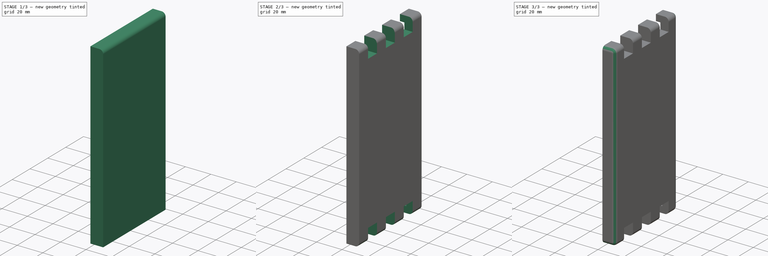
[diagram: build sequence overview — one tinted view per stage of 3, left to right]
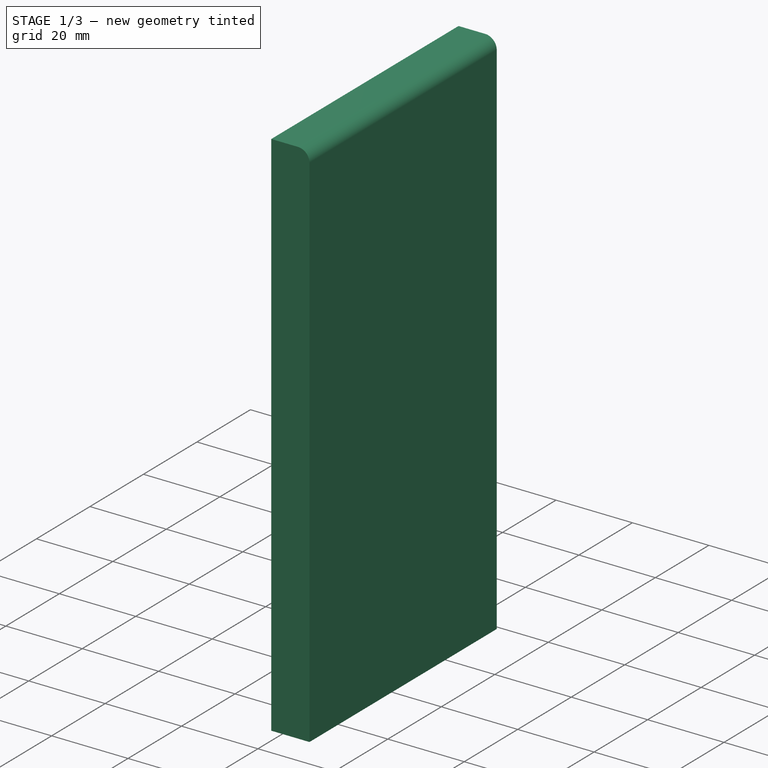
[diagram: stage 1 of 3 — iso view after this stage's code; geometry added in this stage tinted green]
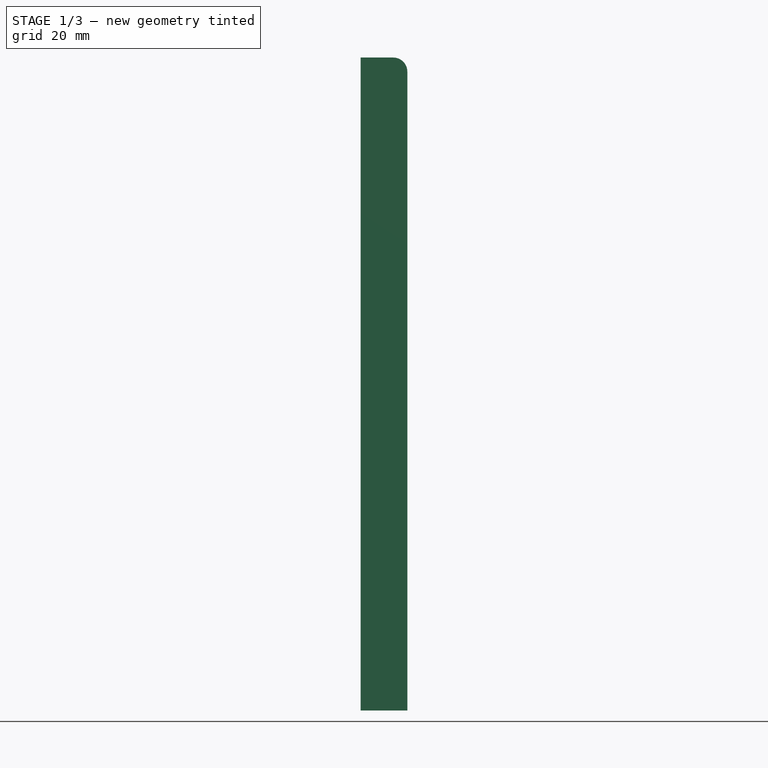
[diagram: stage 1 of 3 — front view after this stage's code; geometry added in this stage tinted green]
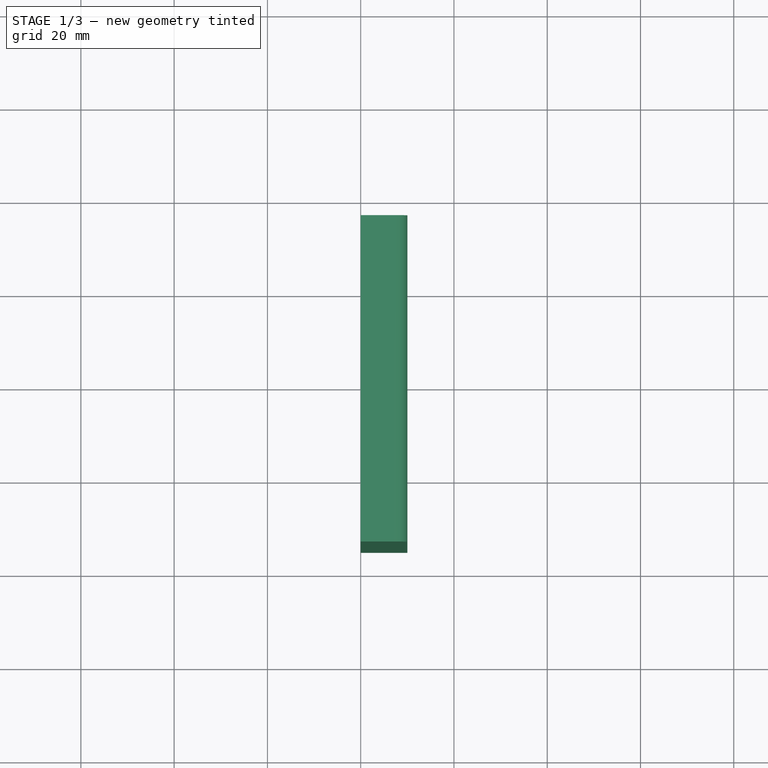
[diagram: stage 1 of 3 — top view after this stage's code; geometry added in this stage tinted green]
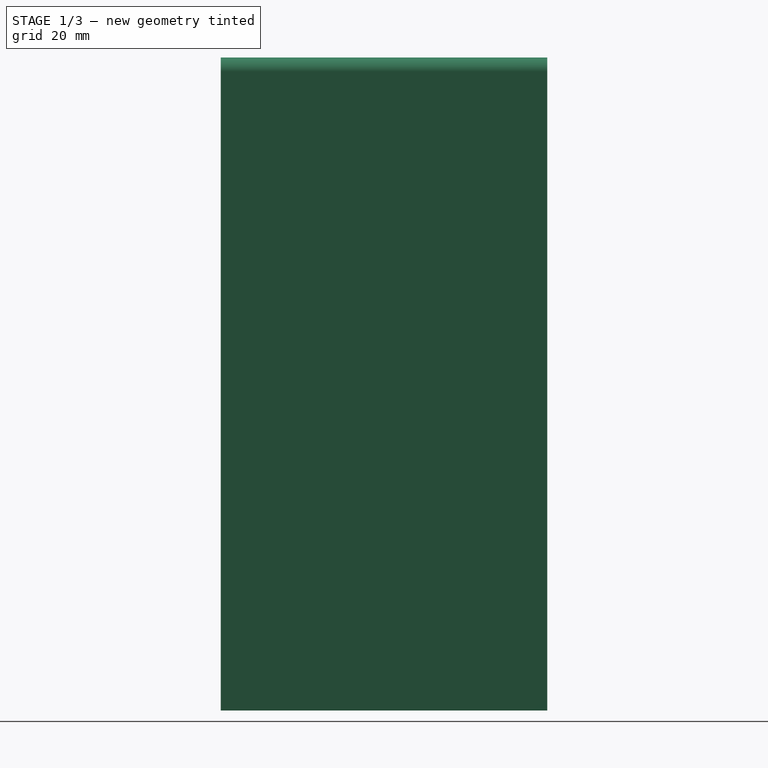
[diagram: stage 1 of 3 — right view after this stage's code; geometry added in this stage tinted green]
FCSTD DOCUMENT  (FreeCAD 0.18R16093 (Git))
Label: sidePanelLeft
License: All rights reserved
LicenseURL: http://en.wikipedia.org/wiki/All_rights_reserved
objects: PartDesign::Fillet×4, Drawing::FeatureViewPart×4, Sketcher::SketchObject×3, PartDesign::Pocket×2, PartDesign::Pad×1, PartDesign::Body×1, Drawing::FeaturePage×1
note: 14 computed .brp shape members not serialized (recipe doc carries the construction recipe); baked Part::Feature solids carry a one-line shape summary decoded from their .brp

FEATURE [Sketcher::SketchObject] Sketch
  MapMode = 5
  Placement = pos=(0,0,0) rot=(0.57735,0.57735,0.57735;2.0944rad)
  Support = -> [YZ_Plane]
  sketch-geometry (4):
    g0: LineSegment StartX=-35 StartY=70 StartZ=0 EndX=35 EndY=70 EndZ=0
    g1: LineSegment StartX=35 StartY=70 StartZ=0 EndX=35 EndY=-70 EndZ=0
    g2: LineSegment StartX=35 StartY=-70 StartZ=0 EndX=-35 EndY=-70 EndZ=0
    g3: LineSegment StartX=-35 StartY=-70 StartZ=0 EndX=-35 EndY=70 EndZ=0
  constraints (10):
    c: Coincident(g0,g1)
    c: Coincident(g1,g2)
    c: Coincident(g2,g3)
    c: Coincident(g3,g0)
    c: DistanceY(g3,g3) = 140
    c: DistanceX(g0,g0) = 70
    c: Symmetric(g0,g0,g-2)
    c: Symmetric(g0,g2,g-1)
    c: Parallel(g3,g1)
    c: Parallel(g0,g2)
FEATURE [PartDesign::Pad] Pad
  Length = 10
  Length2 = 100
  Placement = pos=(0,0,0) rot=(0.57735,0.57735,0.57735;2.0944rad)
  Profile = -> Sketch
  Type = 0
FEATURE [PartDesign::Fillet] Fillet
  Base = -> Pad [Edge4]
  BaseFeature = -> Pad
  Placement = pos=(0,0,0) rot=(0.57735,0.57735,0.57735;2.0944rad)
  Radius = 3
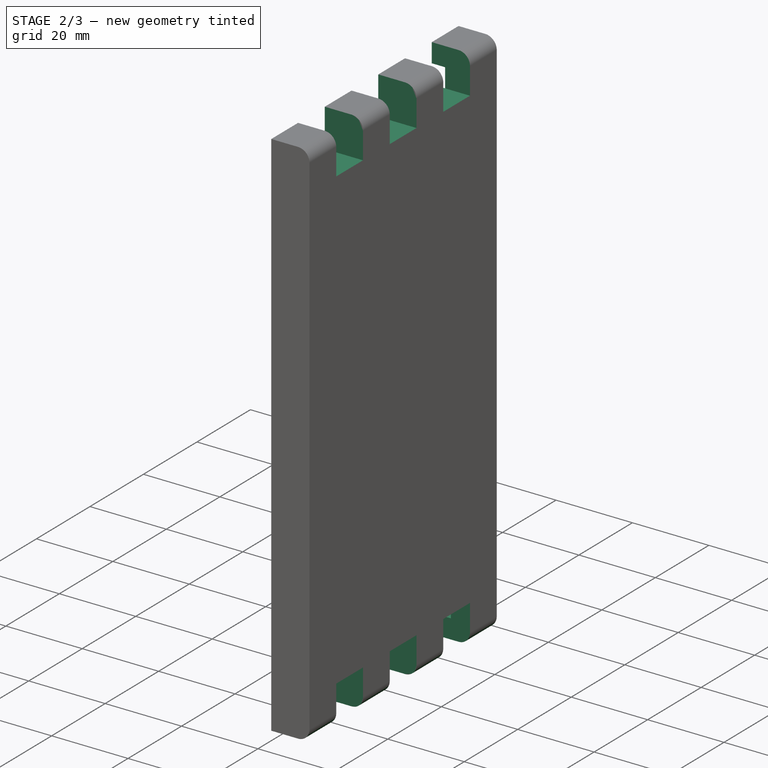
[diagram: stage 2 of 3 — iso view after this stage's code; geometry added in this stage tinted green]
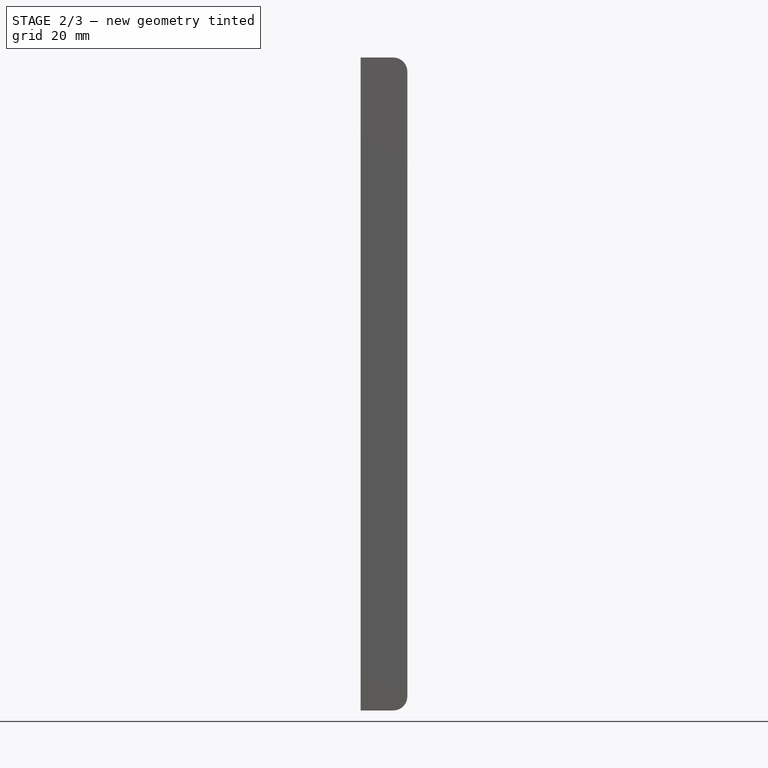
[diagram: stage 2 of 3 — front view after this stage's code; geometry added in this stage tinted green]
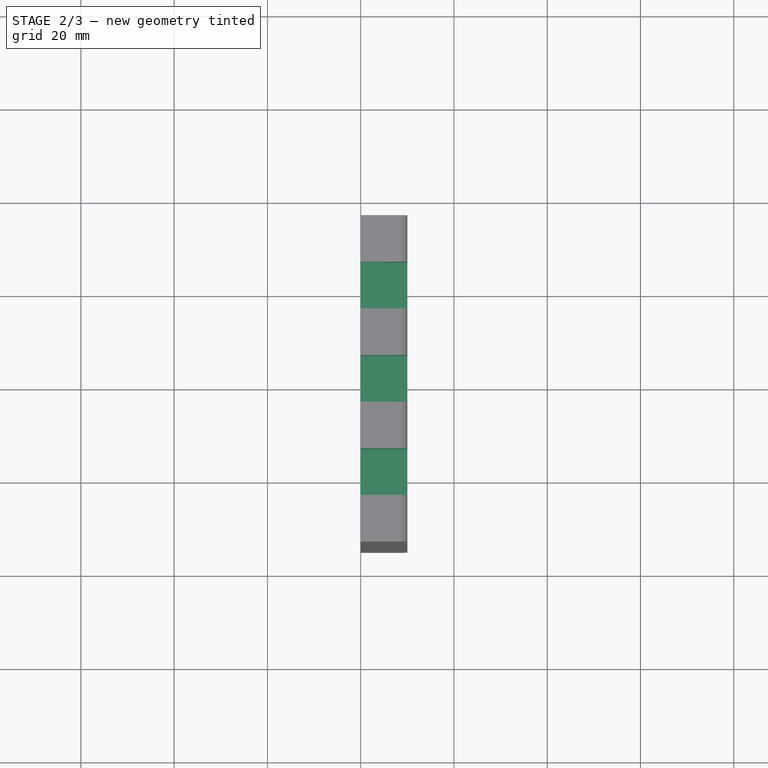
[diagram: stage 2 of 3 — top view after this stage's code; geometry added in this stage tinted green]
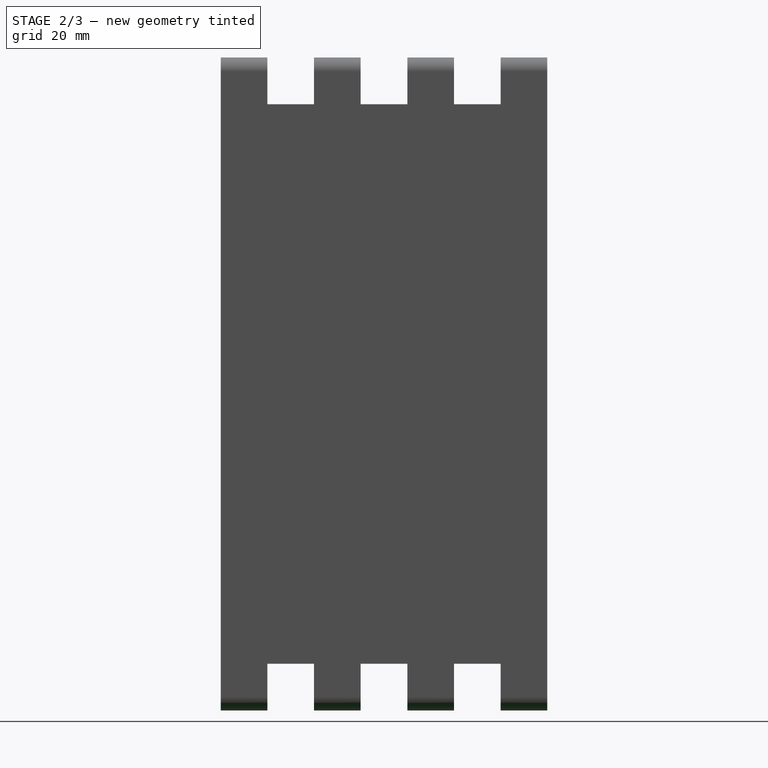
[diagram: stage 2 of 3 — right view after this stage's code; geometry added in this stage tinted green]
FEATURE [PartDesign::Fillet] Fillet001
  Base = -> Fillet [Edge15]
  BaseFeature = -> Fillet
  Placement = pos=(0,0,0) rot=(0.57735,0.57735,0.57735;2.0944rad)
  Radius = 3
FEATURE [Sketcher::SketchObject] Sketch001
  MapMode = 5
  Placement = pos=(0,0,0) rot=(0.57735,0.57735,-0.57735;4.18879rad)
  Support = -> [Fillet001]
  sketch-geometry (24):
    g0: LineSegment StartX=-25 StartY=70 StartZ=0 EndX=-15 EndY=70 EndZ=0
    g1: LineSegment StartX=-15 StartY=70 StartZ=0 EndX=-15 EndY=60 EndZ=0
    g2: LineSegment StartX=-15 StartY=60 StartZ=0 EndX=-25 EndY=60 EndZ=0
    g3: LineSegment StartX=-25 StartY=60 StartZ=0 EndX=-25 EndY=70 EndZ=0
    g4: LineSegment StartX=-5 StartY=70 StartZ=0 EndX=5 EndY=70 EndZ=0
    g5: LineSegment StartX=5 StartY=70 StartZ=0 EndX=5 EndY=60 EndZ=0
    g6: LineSegment StartX=5 StartY=60 StartZ=0 EndX=-5 EndY=60 EndZ=0
    g7: LineSegment StartX=-5 StartY=60 StartZ=0 EndX=-5 EndY=70 EndZ=0
    g8: LineSegment StartX=25 StartY=70 StartZ=0 EndX=15 EndY=70 EndZ=0
    g9: LineSegment StartX=15 StartY=70 StartZ=0 EndX=15 EndY=60 EndZ=0
    g10: LineSegment StartX=15 StartY=60 StartZ=0 EndX=25 EndY=60 EndZ=0
    g11: LineSegment StartX=25 StartY=60 StartZ=0 EndX=25 EndY=70 EndZ=0
    g12: LineSegment StartX=-25 StartY=-70 StartZ=0 EndX=-15 EndY=-70 EndZ=0
    g13: LineSegment StartX=-15 StartY=-70 StartZ=0 EndX=-15 EndY=-60 EndZ=0
    g14: LineSegment StartX=-15 StartY=-60 StartZ=0 EndX=-25 EndY=-60 EndZ=0
    g15: LineSegment StartX=-25 StartY=-60 StartZ=0 EndX=-25 EndY=-70 EndZ=0
    g16: LineSegment StartX=-5 StartY=-70 StartZ=0 EndX=5 EndY=-70 EndZ=0
    g17: LineSegment StartX=5 StartY=-70 StartZ=0 EndX=5 EndY=-60 EndZ=0
    g18: LineSegment StartX=5 StartY=-60 StartZ=0 EndX=-5 EndY=-60 EndZ=0
    g19: LineSegment StartX=-5 StartY=-60 StartZ=0 EndX=-5 EndY=-70 EndZ=0
    g20: LineSegment StartX=25 StartY=-70 StartZ=0 EndX=15 EndY=-70 EndZ=0
    g21: LineSegment StartX=15 StartY=-70 StartZ=0 EndX=15 EndY=-60 EndZ=0
    g22: LineSegment StartX=15 StartY=-60 StartZ=0 EndX=25 EndY=-60 EndZ=0
    g23: LineSegment StartX=25 StartY=-60 StartZ=0 EndX=25 EndY=-70 EndZ=0
  constraints (70):
    c: Coincident(g0,g1)
    c: Coincident(g1,g2)
    c: Coincident(g2,g3)
    c: Coincident(g3,g0)
    c: Horizontal(g0)
    c: Horizontal(g2)
    c: Vertical(g1)
    c: Vertical(g3)
    c: DistanceX(g0,g0) = 10
    c: DistanceY(g2,g0) = 10
    c: DistanceY(g-1,g2) = 60
    c: Coincident(g4,g5)
    c: Coincident(g5,g6)
    c: Coincident(g6,g7)
    c: Coincident(g7,g4)
    c: Horizontal(g6)
    c: Vertical(g5)
    c: Vertical(g7)
    c: DistanceX(g0,g4) = 10
    c: DistanceX(g4,g4) = 10
    c: Horizontal(g6,g1)
    c: Horizontal(g4,g0)
    c: Coincident(g8,g9)
    c: Coincident(g9,g10)
    c: Coincident(g10,g11)
    c: Coincident(g11,g8)
    c: Horizontal(g8)
    c: Horizontal(g10)
    c: Vertical(g9)
    c: Vertical(g11)
    c: Horizontal(g5,g9)
    c: Horizontal(g4,g8)
    c: DistanceX(g4,g8) = 10
    c: DistanceX(g8,g8) = 10
    c: Coincident(g12,g13)
    c: Coincident(g13,g14)
    c: Coincident(g14,g15)
    c: Coincident(g15,g12)
    c: Horizontal(g12)
    c: Horizontal(g14)
    c: Vertical(g13)
    c: Vertical(g15)
    c: Coincident(g16,g17)
    c: Coincident(g17,g18)
    c: Coincident(g18,g19)
    c: Coincident(g19,g16)
    c: Horizontal(g16)
    c: Vertical(g17)
    c: Vertical(g19)
    c: Coincident(g20,g21)
    c: Coincident(g21,g22)
    c: Coincident(g22,g23)
    c: Coincident(g23,g20)
    c: Horizontal(g20)
    c: Horizontal(g22)
    c: Vertical(g21)
    c: Vertical(g23)
    c: DistanceY(g14,g-1) = 60
    c: DistanceY(g12,g14) = 10
    c: Horizontal(g13,g18)
    c: Horizontal(g17,g21)
    c: Horizontal(g12,g16)
    c: Horizontal(g16,g20)
    c: DistanceX(g12,g12) = 10
    c: DistanceX(g12,g16) = 10
    c: DistanceX(g16,g16) = 10
    c: DistanceX(g16,g20) = 10
    c: DistanceX(g20,g20) = 10
    c: Symmetric(g18,g17,g-2)
    c: Symmetric(g4,g4,g-2)
FEATURE [PartDesign::Pocket] Pocket
  BaseFeature = -> Fillet001
  Length = 5
  Length2 = 100
  Placement = pos=(0,0,0) rot=(0.57735,0.57735,0.57735;2.0944rad)
  Profile = -> Sketch001
  Type = 1
FEATURE [Sketcher::SketchObject] Sketch002
  MapMode = 5
  Placement = pos=(0,0,0) rot=(0.57735,0.57735,-0.57735;4.18879rad)
  Support = -> [Pocket]
  sketch-geometry (8):
    g0: ArcOfCircle CenterX=27.5 CenterY=-65 CenterZ=0 NormalX=0 NormalY=0 NormalZ=1 AngleXU=0 Radius=2.5 StartAngle=3.14159 EndAngle=6.28319
    g1: ArcOfCircle CenterX=27.5 CenterY=65 CenterZ=0 NormalX=0 NormalY=0 NormalZ=1 AngleXU=0 Radius=2.5 StartAngle=0 EndAngle=3.14159
    g2: LineSegment StartX=30 StartY=-65 StartZ=0 EndX=30 EndY=65 EndZ=0
    g3: LineSegment StartX=25 StartY=-65 StartZ=0 EndX=25 EndY=65 EndZ=0
    g4: ArcOfCircle CenterX=-27.5 CenterY=-65 CenterZ=0 NormalX=0 NormalY=0 NormalZ=1 AngleXU=0 Radius=2.5 StartAngle=3.14159 EndAngle=6.28319
    g5: ArcOfCircle CenterX=-27.5 CenterY=70 CenterZ=0 NormalX=0 NormalY=0 NormalZ=1 AngleXU=0 Radius=2.5 StartAngle=0 EndAngle=3.14159
    g6: LineSegment StartX=-25 StartY=-65 StartZ=0 EndX=-25 EndY=70 EndZ=0
    g7: LineSegment StartX=-30 StartY=-65 StartZ=0 EndX=-30 EndY=70 EndZ=0
  constraints (20):
    c: Tangent(g0,g3) = 1.5708
    c: Tangent(g0,g2) = -1.5708
    c: Tangent(g2,g1) = -1.5708
    c: Tangent(g3,g1) = 1.5708
    c: Vertical(g2)
    c: Equal(g0,g1)
    c: Tangent(g4,g7) = 1.5708
    c: Tangent(g4,g6) = -1.5708
    c: Tangent(g6,g5) = -1.5708
    c: Tangent(g7,g5) = 1.5708
    c: Vertical(g6)
    c: Equal(g4,g5)
    c: Radius(g1) = 2.5
    c: Radius(g4) = 2.5
    c: DistanceX(g-1,g0) = 25
    c: DistanceX(g4,g-1) = 25
    c: DistanceY(g0,g1) = 130
    c: DistanceY(g4,g5) = 135
    c: DistanceY(g4,g-1) = 65
    c: Horizontal(g0,g4)
FEATURE [PartDesign::Pocket] Pocket001
  BaseFeature = -> Pocket
  Length = 5
  Length2 = 100
  Placement = pos=(0,0,0) rot=(0.57735,0.57735,0.57735;2.0944rad)
  Profile = -> Sketch002
  Type = 0
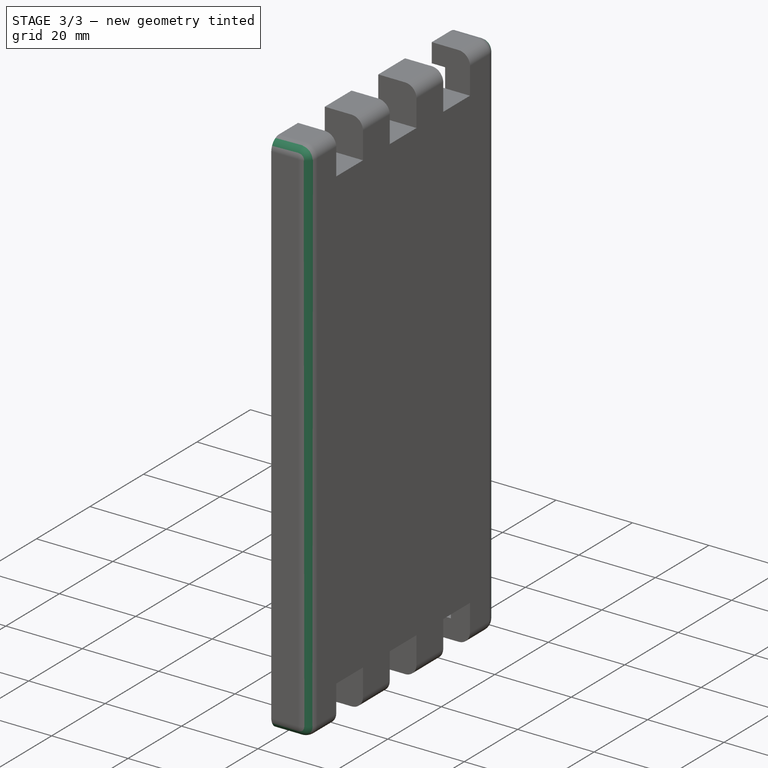
[diagram: stage 3 of 3 — iso view after this stage's code; geometry added in this stage tinted green]
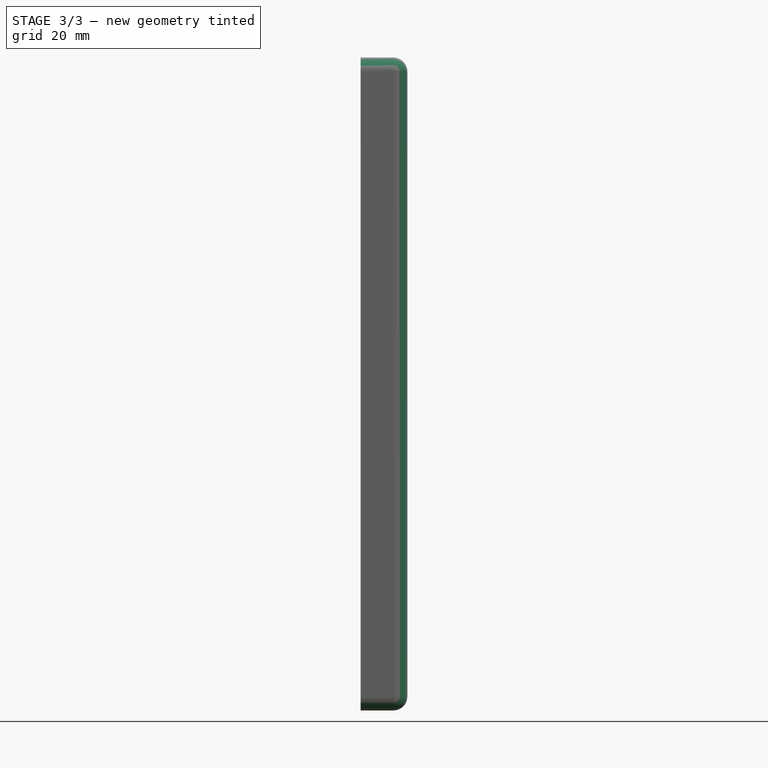
[diagram: stage 3 of 3 — front view after this stage's code; geometry added in this stage tinted green]
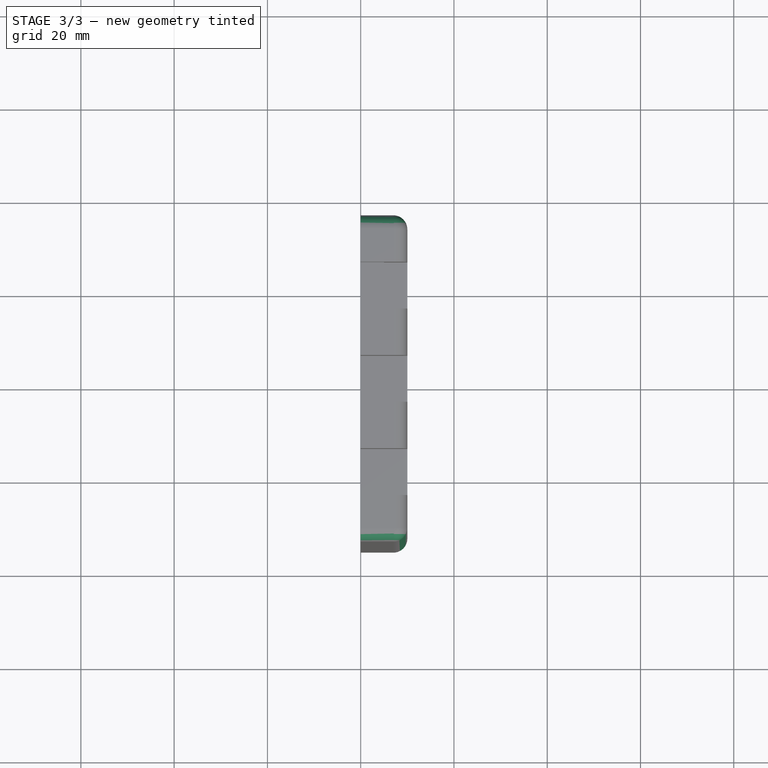
[diagram: stage 3 of 3 — top view after this stage's code; geometry added in this stage tinted green]
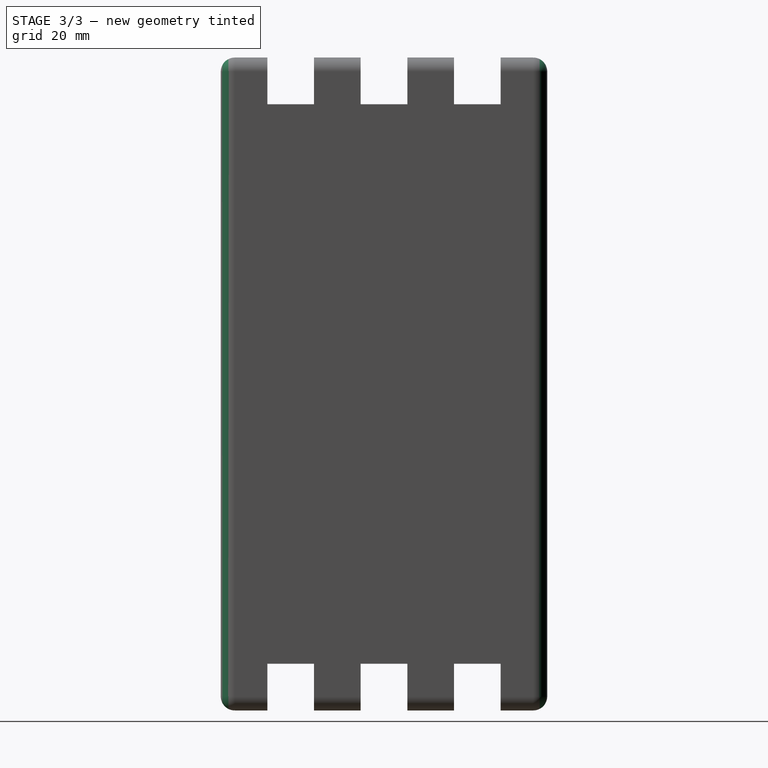
[diagram: stage 3 of 3 — right view after this stage's code; geometry added in this stage tinted green]
FEATURE [PartDesign::Fillet] Fillet002
  Base = -> Pocket001 [Edge1]
  BaseFeature = -> Pocket001
  Placement = pos=(0,0,0) rot=(0.57735,0.57735,0.57735;2.0944rad)
  Radius = 3
FEATURE [PartDesign::Fillet] Fillet003
  Base = -> Fillet002 [Edge61]
  BaseFeature = -> Fillet002
  Placement = pos=(0,0,0) rot=(0.57735,0.57735,0.57735;2.0944rad)
  Radius = 3
FEATURE [PartDesign::Body] Body  label="SidePanelLeft"
  Group = -> [Sketch,Pad,Fillet,Fillet001,Sketch001,Pocket,Sketch002,Pocket001,Fillet002,Fillet003]
  Origin = -> Origin
  Tip = -> Fillet003
FEATURE [Drawing::FeatureViewPart] View
  Direction = (-1,0,0)
  HiddenWidth = 0.15
  LineWidth = 0.35
  Rotation = 180
  ShowHiddenLines = false
  ShowSmoothLines = false
  Source = -> Body
  Tolerance = 0.05
  ViewResult = <blob: 2009 chars omitted>
  Visible = true
  X = 190
  Y = 50
FEATURE [Drawing::FeatureViewPart] View001
  Direction = (0,0,-1)
  HiddenWidth = 0.15
  LineWidth = 0.35
  Rotation = 0
  ShowHiddenLines = false
  ShowSmoothLines = false
  Source = -> Body
  Tolerance = 0.05
  ViewResult = <blob: 4436 chars omitted>
  Visible = true
  X = 90
  Y = 50
FEATURE [Drawing::FeatureViewPart] View002
  Direction = (-1,1,1)
  HiddenWidth = 0.15
  LineWidth = 0.35
  Rotation = 180
  Scale = 0.5
  ShowHiddenLines = false
  ShowSmoothLines = false
  Source = -> Body
  Tolerance = 0.05
  ViewResult = <blob: 6347 chars omitted>
  Visible = true
  X = 50
  Y = 147
FEATURE [Drawing::FeatureViewPart] View003
  Direction = (1,0,0)
  HiddenWidth = 0.15
  LineWidth = 0.35
  Rotation = 0
  ShowHiddenLines = false
  ShowSmoothLines = false
  Source = -> Body
  Tolerance = 0.05
  ViewResult = <blob: 5664 chars omitted>
  Visible = true
  X = 190
  Y = 123
FEATURE [Drawing::FeaturePage] Page
  EditableTexts = Andreas Renggli | Side Panel Left | FreeCAD DRAWING | A4 | 1  | 1:1 | DN | DD/MM/YYYY | REV A
  Group = -> [View,View001,View002,View003]
  Template = <path>
note: 1 file-system path scrubbed to <path> (originals preserved in the JSON sidecar)
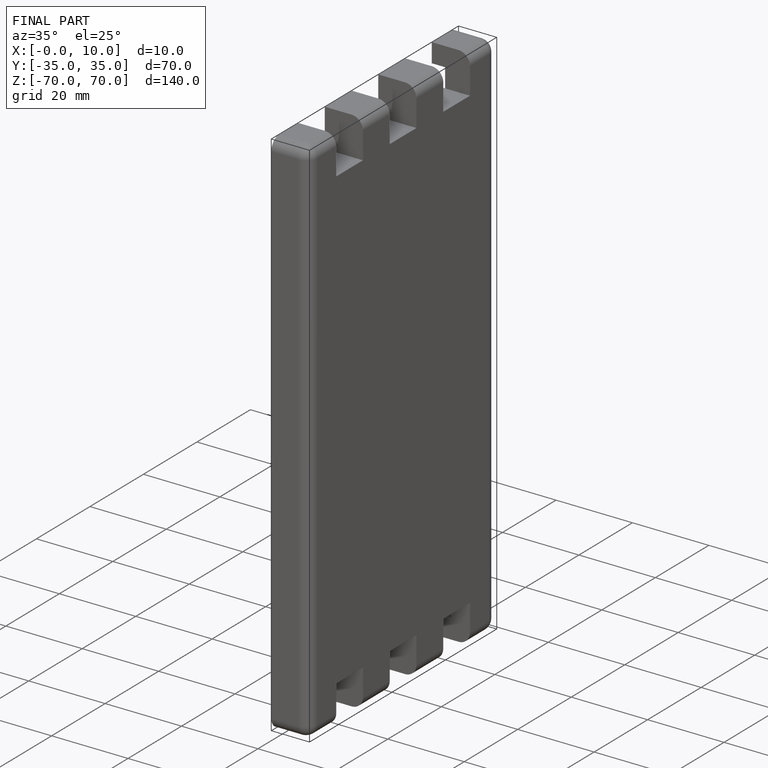
[diagram: finished part — iso view with bounding-box wireframe]
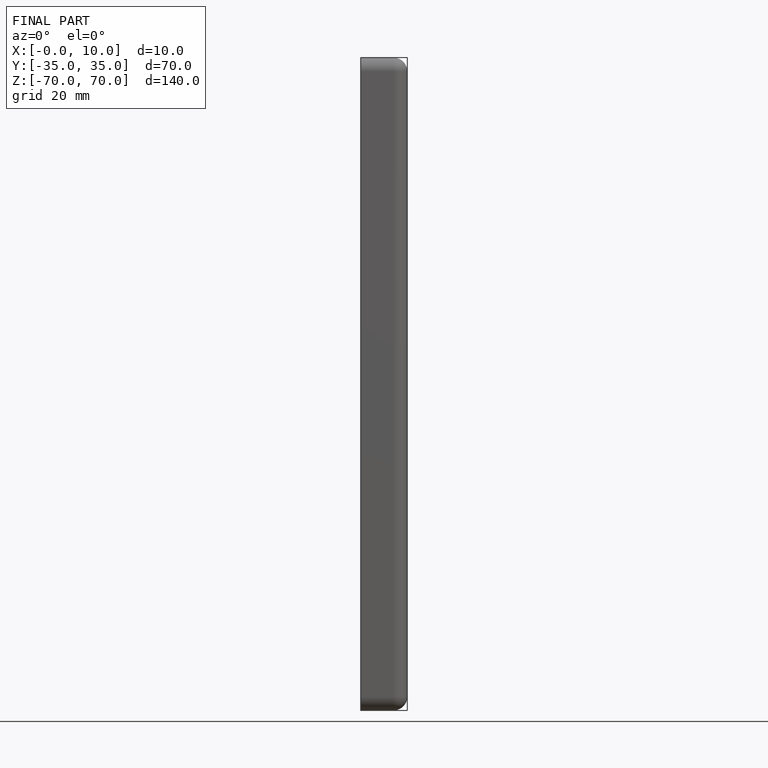
[diagram: finished part — front view with bounding-box wireframe]
